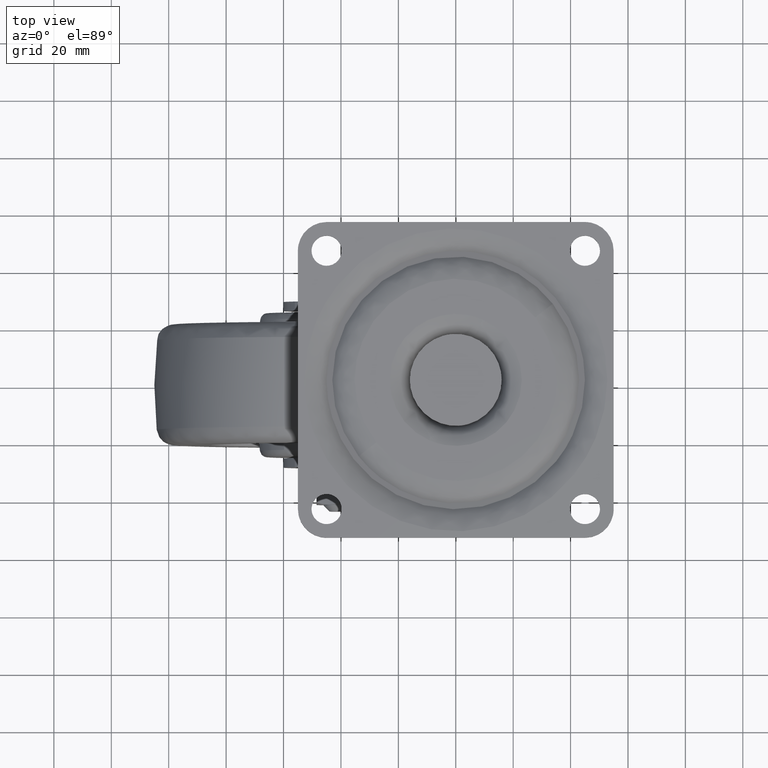
[diagram: clean part render]
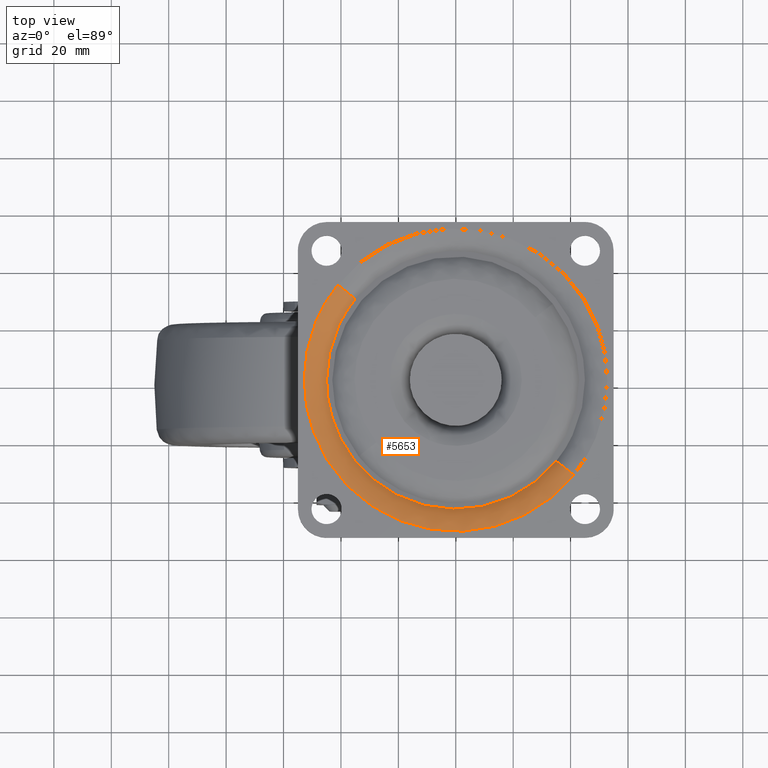
[diagram: same view with one face highlighted and labeled with its STEP entity id]
A machine part, top view. The second image highlights one B-rep face of the part: STEP entity #5653.
In plain terms, the highlighted face is a freeform B-spline surface patch.
Its self-contained STEP definition (entity closure, byte-faithful):
#5436=CARTESIAN_POINT('',(-52.765951326141597,0.0,0.0));
#5437=VERTEX_POINT('',#5436);
#5438=CARTESIAN_POINT('',(-41.076303912544788,33.120731816828247,-2.057658E-015));
#5439=VERTEX_POINT('',#5438);
#5440=CARTESIAN_POINT('',(-52.765951326141597,0.0,0.0));
#5441=CARTESIAN_POINT('',(-52.765951325570867,18.623240868113797,-1.028829E-015));
#5442=CARTESIAN_POINT('',(-41.076303912544788,33.120731816828240,-2.057658E-015));
#5450=(BOUNDED_CURVE()B_SPLINE_CURVE(2,(#5440,#5441,#5442),.UNSPECIFIED.,.F.,.U.)B_SPLINE_CURVE_WITH_KNOTS((3,3),(0.0,0.108867648263720),.UNSPECIFIED.)CURVE()GEOMETRIC_REPRESENTATION_ITEM()RATIONAL_B_SPLINE_CURVE((1.0,0.872453616301553,0.855992631305442))REPRESENTATION_ITEM(''));
#5451=EDGE_CURVE('',#5437,#5439,#5450,.T.);
#5481=CARTESIAN_POINT('',(41.076303912544802,-33.120731816828240,-2.057658E-015));
#5482=VERTEX_POINT('',#5481);
#5496=CARTESIAN_POINT('',(41.076303912544802,-33.120731816828240,-2.057658E-015));
#5497=CARTESIAN_POINT('',(40.014119641262830,-34.438075506934361,-2.046013E-015));
#5498=CARTESIAN_POINT('',(37.425209263194098,-37.350339229197381,-2.015576E-015));
#5499=CARTESIAN_POINT('',(32.638988181547440,-41.663703427613619,-1.951937E-015));
#5500=CARTESIAN_POINT('',(27.383430515676370,-45.249678689765588,-1.874142E-015));
#5501=CARTESIAN_POINT('',(21.676344823767980,-48.227370563149123,-1.783357E-015));
#5502=CARTESIAN_POINT('',(15.590013347726529,-50.590033801275482,-1.680944E-015));
#5503=CARTESIAN_POINT('',(9.312592815667919,-52.064856993982730,-1.568697E-015));
#5504=CARTESIAN_POINT('',(3.422009133018973,-52.732607513184917,-1.458437E-015));
#5505=CARTESIAN_POINT('',(-1.660159749855148,-52.829665241323212,-1.360013E-015));
#5506=CARTESIAN_POINT('',(-8.246124686268328,-52.289182113931162,-1.227881E-015));
#5507=CARTESIAN_POINT('',(-14.961005418972050,-50.794441803852663,-1.086668E-015));
#5508=CARTESIAN_POINT('',(-20.902411071932821,-48.535092770219940,-9.552748E-016));
#5509=CARTESIAN_POINT('',(-25.536751502013580,-46.255470910418282,-8.492270E-016));
#5510=CARTESIAN_POINT('',(-29.519001959425481,-43.834996697424117,-7.549244E-016));
#5511=CARTESIAN_POINT('',(-33.858910900820810,-40.587848638834977,-6.479593E-016));
#5512=CARTESIAN_POINT('',(-37.602519632254442,-37.146310636897397,-5.512832E-016));
#5513=CARTESIAN_POINT('',(-41.202508733660032,-33.094292050757659,-4.532062E-016));
#5514=CARTESIAN_POINT('',(-43.998634268786390,-29.260809231826059,-3.723068E-016));
#5515=CARTESIAN_POINT('',(-46.692267482288393,-24.754726044839980,-2.887773E-016));
#5516=CARTESIAN_POINT('',(-48.833768228870483,-20.236105970705381,-2.159269E-016));
#5517=CARTESIAN_POINT('',(-50.834442877387652,-14.564950723313610,-1.378910E-016));
#5518=CARTESIAN_POINT('',(-52.355299336076442,-7.953365524222346,-6.273896E-017));
#5519=CARTESIAN_POINT('',(-52.766149509419193,-2.792154241234464,-1.921069E-017));
#5520=CARTESIAN_POINT('',(-52.765951326141597,0.0,0.0));
#5521=B_SPLINE_CURVE_WITH_KNOTS('',3,(#5496,#5497,#5498,#5499,#5500,#5501,#5502,#5503,#5504,#5505,#5506,#5507,#5508,#5509,#5510,#5511,#5512,#5513,#5514,#5515,#5516,#5517,#5518,#5519,#5520),.UNSPECIFIED.,.F.,.U.,(4,1,1,1,1,1,1,1,1,1,1,1,1,1,1,1,1,1,1,1,1,1,4),(0.000000156368174,5.076684798933854,11.676381716788750,19.291425676463621,24.114312206093690,30.967782454284048,38.836675336928373,43.405681453347100,48.736039094970891,54.066572540105682,63.204633429173107,69.296686966176054,73.104228100808712,78.688574924043266,83.257609844165032,89.349647473137026,93.918679260862746,99.503031383180755,103.564407179098890,109.656429630283800,114.479284360204010,121.586686782900900,129.963119347970890),.UNSPECIFIED.);
#5522=EDGE_CURVE('',#5482,#5437,#5521,.T.);
#5551=CARTESIAN_POINT('',(35.612009029313676,-27.108080447150840,-4.037296353773592));
#5552=CARTESIAN_POINT('',(35.221758313984793,-27.592069058079623,-4.037296353773593));
#5553=CARTESIAN_POINT('',(6.745207578836279,-62.908663475423019,-4.037296353773594));
#5554=CARTESIAN_POINT('',(-28.081727948293373,-34.826935527129649,-4.037296353773591));
#5555=CARTESIAN_POINT('',(-62.908663475423019,-6.745207578836312,-4.037296353773594));
#5556=CARTESIAN_POINT('',(-34.432112740259228,28.571386838526085,-4.037296353773592));
#5557=CARTESIAN_POINT('',(-34.041862024915424,29.055375449473388,-4.037296353773592));
#5558=CARTESIAN_POINT('',(38.127693757484423,-29.023035145010958,0.217636684728784));
#5559=CARTESIAN_POINT('',(37.709875157291151,-29.541213423703795,0.217636684728784));
#5560=CARTESIAN_POINT('',(7.221698969154990,-67.352624046265475,0.217636684728784));
#5561=CARTESIAN_POINT('',(-30.065462538555234,-37.287161507710238,0.217636684728784));
#5562=CARTESIAN_POINT('',(-67.352624046265475,-7.221698969155024,0.217636684728784));
#5563=CARTESIAN_POINT('',(-36.864447858112946,30.589711653426981,0.217636684728784));
#5564=CARTESIAN_POINT('',(-36.446629257903702,31.107889932139646,0.217636684728784));
#5565=CARTESIAN_POINT('',(42.342863166686755,-32.231648041547359,-0.009159047529572));
#5566=CARTESIAN_POINT('',(41.878853045093500,-32.807113006467581,-0.009159047529572));
#5567=CARTESIAN_POINT('',(8.020086743953847,-74.798726669600640,-0.009159047529573));
#5568=CARTESIAN_POINT('',(-33.389319962823393,-41.409406706777240,-0.009159047529572));
#5569=CARTESIAN_POINT('',(-74.798726669600640,-8.020086743953884,-0.009159047529573));
#5570=CARTESIAN_POINT('',(-40.939960368442790,33.971526919201750,-0.009159047529572));
#5571=CARTESIAN_POINT('',(-40.475950246831786,34.546991884143978,-0.009159047529572));
#5579=(BOUNDED_SURFACE()B_SPLINE_SURFACE(2,2,((#5551,#5558,#5565),(#5552,#5559,#5566),(#5553,#5560,#5567),(#5554,#5561,#5568),(#5555,#5562,#5569),(#5556,#5563,#5570),(#5557,#5564,#5571)),.UNSPECIFIED.,.F.,.F.,.U.)B_SPLINE_SURFACE_WITH_KNOTS((3,1,2,1,3),(3,3),(0.0,1.762689120151990,89.897145127814014,178.031601135476000,179.794290255696610),(0.0,9.948327745046116),.UNSPECIFIED.)GEOMETRIC_REPRESENTATION_ITEM()RATIONAL_B_SPLINE_SURFACE(((0.939582462505532,0.829202031407216,0.937365734488446),(0.934142251901649,0.824400926805930,0.931938358806186),(0.656691511103440,0.579544592140193,0.655142199010743),(0.928702041297767,0.819599822204644,0.926510983123927),(0.656691511103440,0.579544592140193,0.655142199010743),(0.934142251901861,0.824400926806117,0.931938358806398),(0.939582462505956,0.829202031407589,0.937365734488869)))REPRESENTATION_ITEM('')SURFACE());
#5580=CARTESIAN_POINT('',(35.030803570542147,-28.246111258104321,-3.699999999957339));
#5581=VERTEX_POINT('',#5580);
#5582=CARTESIAN_POINT('',(-45.000000000000028,0.0,-3.700000000000017));
#5583=VERTEX_POINT('',#5582);
#5584=CARTESIAN_POINT('',(35.030803570542147,-28.246111258104321,-3.699999999957339));
#5585=CARTESIAN_POINT('',(33.445707401981473,-30.212311647626890,-3.699999999957764));
#5586=CARTESIAN_POINT('',(30.543523116691290,-33.248345608958033,-3.699999999958620));
#5587=CARTESIAN_POINT('',(26.176638478824120,-36.697479565194072,-3.699999999960143));
#5588=CARTESIAN_POINT('',(22.095585435206520,-39.298885843069918,-3.699999999961634));
#5589=CARTESIAN_POINT('',(16.723833241071620,-41.971860956248868,-3.699999999963723));
#5590=CARTESIAN_POINT('',(10.369236010507990,-43.991467595838031,-3.699999999966399));
#5591=CARTESIAN_POINT('',(3.929966294063814,-44.941830060148277,-3.699999999969271));
#5592=CARTESIAN_POINT('',(-2.066624605753908,-45.085294431361767,-3.699999999972170));
#5593=CARTESIAN_POINT('',(-8.038233254884457,-44.435527181153397,-3.699999999975056));
#5594=CARTESIAN_POINT('',(-14.690686531614270,-42.717785159411370,-3.699999999978464));
#5595=CARTESIAN_POINT('',(-20.283225838051980,-40.325321691146051,-3.699999999981531));
#5596=CARTESIAN_POINT('',(-26.050177340706931,-36.876834791291621,-3.699999999984919));
#5597=CARTESIAN_POINT('',(-31.126444584850731,-32.785119156650303,-3.699999999987864));
#5598=CARTESIAN_POINT('',(-35.260146286544241,-28.132020389024699,-3.699999999990379));
#5599=CARTESIAN_POINT('',(-38.769463180094810,-23.095408875179530,-3.699999999993363));
#5600=CARTESIAN_POINT('',(-41.383631292289401,-18.087164574619759,-3.699999999995182));
#5601=CARTESIAN_POINT('',(-43.304763583160337,-12.555833981879649,-3.699999999997191));
#5602=CARTESIAN_POINT('',(-44.632844264261323,-6.782775806816722,-3.699999999998408));
#5603=CARTESIAN_POINT('',(-45.000243282515989,-2.669865112318446,-3.699999999999945));
#5604=CARTESIAN_POINT('',(-45.000000000000028,0.0,-3.700000000000017));
#5605=B_SPLINE_CURVE_WITH_KNOTS('',3,(#5584,#5585,#5586,#5587,#5588,#5589,#5590,#5591,#5592,#5593,#5594,#5595,#5596,#5597,#5598,#5599,#5600,#5601,#5602,#5603,#5604),.UNSPECIFIED.,.F.,.U.,(4,1,1,1,1,1,1,1,1,1,1,1,1,1,1,1,1,1,4),(0.000000181048094,7.576649948673946,12.555589630471999,16.668667963555041,22.080514742589070,30.523098943138351,36.584473301137493,41.563268728315187,48.490496381570338,54.551822544086278,62.128442565472611,66.674473725085903,74.684073618198425,81.611319770293022,85.291398634486882,93.084506509385463,98.496439656440955,102.825955656185800,110.835495688604990),.UNSPECIFIED.);
#5606=EDGE_CURVE('',#5581,#5583,#5605,.T.);
#5607=ORIENTED_EDGE('',*,*,#5606,.T.);
#5608=CARTESIAN_POINT('',(-35.030803570542133,28.246111258104332,-3.699999999957337));
#5609=VERTEX_POINT('',#5608);
#5610=CARTESIAN_POINT('',(-45.000000000000028,0.0,-3.700000000000017));
#5611=CARTESIAN_POINT('',(-45.000000000013479,15.882322179792208,-3.699999999978677));
#5612=CARTESIAN_POINT('',(-35.030803570542140,28.246111258104328,-3.699999999957337));
#5620=(BOUNDED_CURVE()B_SPLINE_CURVE(2,(#5610,#5611,#5612),.UNSPECIFIED.,.F.,.U.)B_SPLINE_CURVE_WITH_KNOTS((3,3),(0.0,0.108867648263563),.UNSPECIFIED.)CURVE()GEOMETRIC_REPRESENTATION_ITEM()RATIONAL_B_SPLINE_CURVE((1.0,0.872453616301737,0.855992631305490))REPRESENTATION_ITEM(''));
#5621=EDGE_CURVE('',#5583,#5609,#5620,.T.);
#5622=ORIENTED_EDGE('',*,*,#5621,.T.);
#5623=CARTESIAN_POINT('',(-35.030803570542126,28.246111258104332,-3.699999999957337));
#5624=CARTESIAN_POINT('',(-37.367407997211515,30.130167056887618,-6.986046E-010));
#5625=CARTESIAN_POINT('',(-41.076303912544802,33.120731816828247,-2.057658E-015));
#5633=(BOUNDED_CURVE()B_SPLINE_CURVE(2,(#5623,#5624,#5625),.UNSPECIFIED.,.F.,.U.)B_SPLINE_CURVE_WITH_KNOTS((3,3),(-1.600893945755342,-0.412365801277107),.UNSPECIFIED.)CURVE()GEOMETRIC_REPRESENTATION_ITEM()RATIONAL_B_SPLINE_CURVE((0.919238168400401,0.828964190419135,0.917246119520395))REPRESENTATION_ITEM(''));
#5634=EDGE_CURVE('',#5609,#5439,#5633,.T.);
#5635=ORIENTED_EDGE('',*,*,#5634,.T.);
#5636=ORIENTED_EDGE('',*,*,#5451,.F.);
#5637=ORIENTED_EDGE('',*,*,#5522,.F.);
#5638=CARTESIAN_POINT('',(35.030803570542155,-28.246111258104328,-3.699999999957340));
#5639=CARTESIAN_POINT('',(37.367407997211522,-30.130167056887615,-6.986069E-010));
#5640=CARTESIAN_POINT('',(41.076303912544802,-33.120731816828240,-2.057658E-015));
#5648=(BOUNDED_CURVE()B_SPLINE_CURVE(2,(#5638,#5639,#5640),.UNSPECIFIED.,.F.,.U.)B_SPLINE_CURVE_WITH_KNOTS((3,3),(-1.600893945755342,-0.412365801277108),.UNSPECIFIED.)CURVE()GEOMETRIC_REPRESENTATION_ITEM()RATIONAL_B_SPLINE_CURVE((0.919238168400401,0.828964190419135,0.917246119520395))REPRESENTATION_ITEM(''));
#5649=EDGE_CURVE('',#5581,#5482,#5648,.T.);
#5650=ORIENTED_EDGE('',*,*,#5649,.F.);
#5651=EDGE_LOOP('',(#5607,#5622,#5635,#5636,#5637,#5650));
#5652=FACE_OUTER_BOUND('',#5651,.T.);
#5653=ADVANCED_FACE('',(#5652),#5579,.T.);